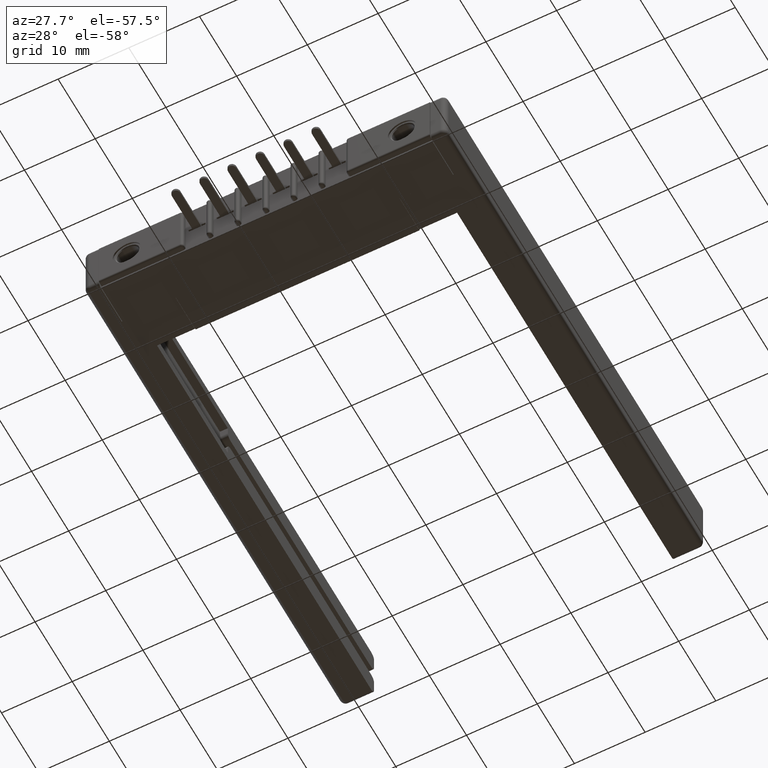
[diagram: clean part render]
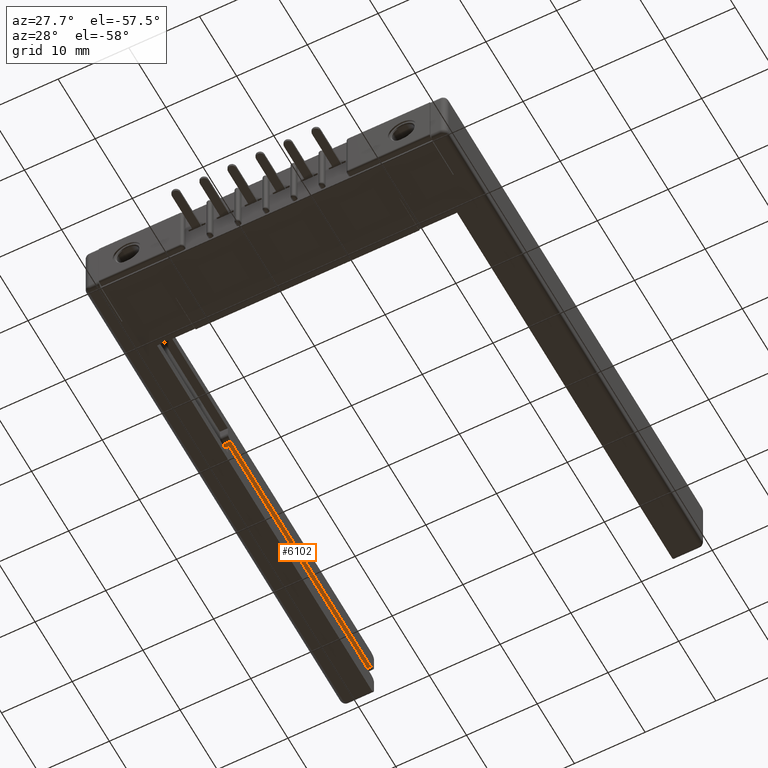
[diagram: same view with one face highlighted and labeled with its STEP entity id]
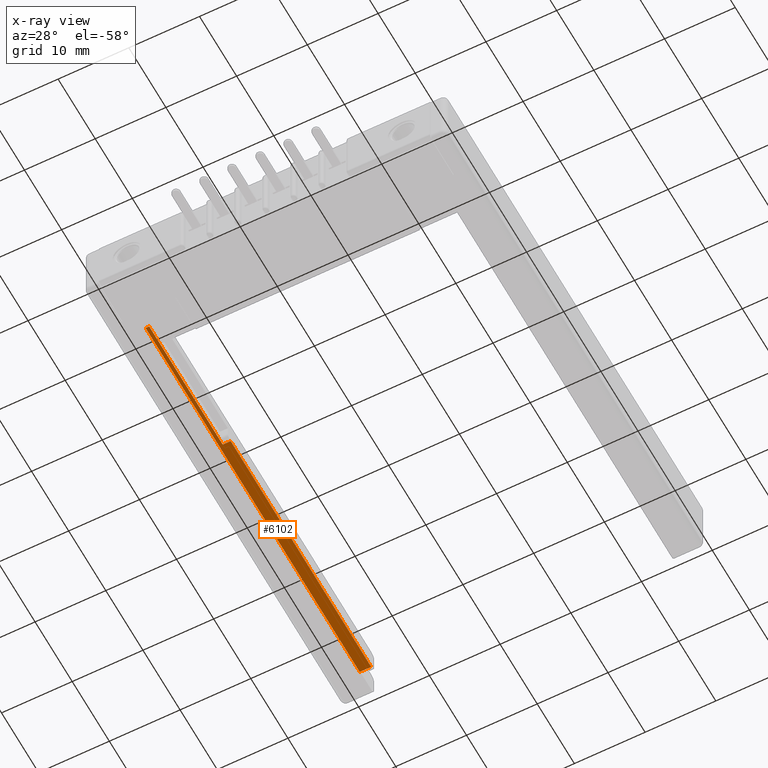
[diagram: x-ray of the same camera — body ghosted, the highlighted face saturated]
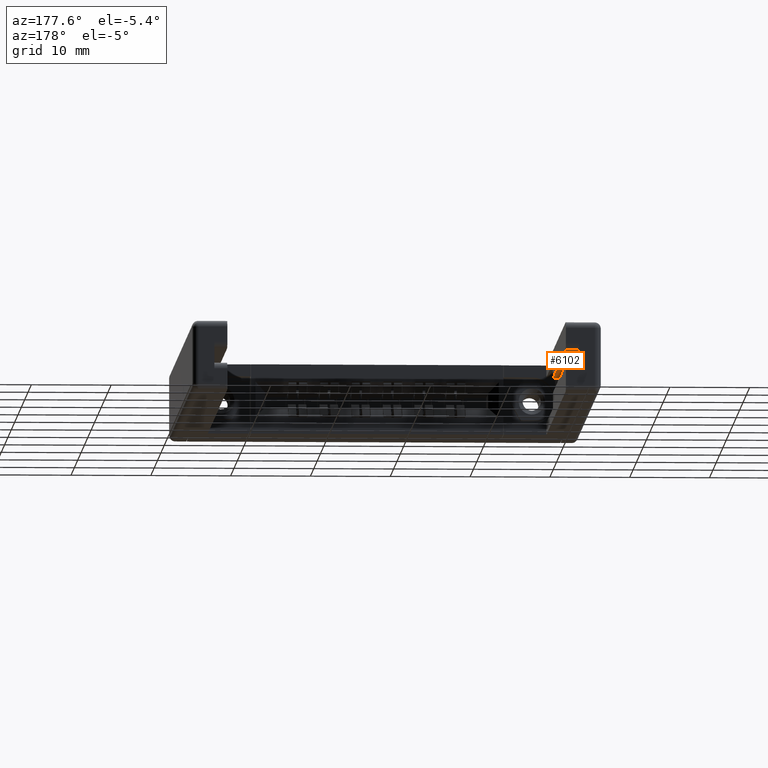
[diagram: same view with one face highlighted and labeled with its STEP entity id]
A machine part, auxiliary view. The second image highlights one B-rep face of the part: STEP entity #6102.
The next image is the same camera in x-ray: the body ghosted, the highlighted face saturated — about 0% of this face is hidden behind the body in this view.
A second angle (auxiliary view) of the same face is appended — the face is thin or edge-on in the first view.
In plain terms, the highlighted planar face has unit normal (-0, 0, 1).
Its self-contained STEP definition (entity closure, byte-faithful):
#102 = ORIENTED_EDGE ( 'NONE', *, *, #4669, .T. ) ;
#360 = ORIENTED_EDGE ( 'NONE', *, *, #4867, .T. ) ;
#378 = ORIENTED_EDGE ( 'NONE', *, *, #4871, .T. ) ;
#672 = ORIENTED_EDGE ( 'NONE', *, *, #4261, .F. ) ;
#753 = ORIENTED_EDGE ( 'NONE', *, *, #4873, .F. ) ;
#863 = ORIENTED_EDGE ( 'NONE', *, *, #4888, .T. ) ;
#975 = LINE ( 'NONE', #6264, #11597 ) ;
#1341 = VECTOR ( 'NONE', #3588, 39.37007874015748100 ) ;
#1550 = VERTEX_POINT ( 'NONE', #3589 ) ;
#1999 = CARTESIAN_POINT ( 'NONE',  ( 0.1729999999999998800, 1.229999999999999800, -0.1360000000000001200 ) ) ;
#3297 = CARTESIAN_POINT ( 'NONE',  ( 0.1289999999999998600, 1.230000000000000000, -0.1360000000000001200 ) ) ;
#3588 = DIRECTION ( 'NONE',  ( 1.365923996832131600E-016, -1.000000000000000000, 3.711749991391662600E-017 ) ) ;
#3589 = CARTESIAN_POINT ( 'NONE',  ( 0.1289999999999999200, 0.4500000000000001200, -0.1360000000000000900 ) ) ;
#3755 = DIRECTION ( 'NONE',  ( 1.187759997245332100E-016, -1.000000000000000000, 3.711749991391662600E-017 ) ) ;
#4173 = DIRECTION ( 'NONE',  ( 1.000000000000000000, 1.294842656484354100E-016, -0.0000000000000000000 ) ) ;
#4261 = EDGE_CURVE ( 'NONE', #4343, #1550, #7360, .T. ) ;
#4334 = AXIS2_PLACEMENT_3D ( 'NONE', #5879, #4899, #5349 ) ;
#4343 = VERTEX_POINT ( 'NONE', #10071 ) ;
#4392 = VERTEX_POINT ( 'NONE', #1999 ) ;
#4442 = LINE ( 'NONE', #10204, #4772 ) ;
#4462 = CARTESIAN_POINT ( 'NONE',  ( 0.1089999999999998600, 1.230000000000000000, -0.1360000000000001200 ) ) ;
#4669 = EDGE_CURVE ( 'NONE', #9593, #4392, #12929, .T. ) ;
#4772 = VECTOR ( 'NONE', #3755, 39.37007874015748100 ) ;
#4800 = VECTOR ( 'NONE', #4173, 39.37007874015748100 ) ;
#4867 = EDGE_CURVE ( 'NONE', #4392, #8307, #9537, .T. ) ;
#4871 = EDGE_CURVE ( 'NONE', #8307, #1550, #7626, .T. ) ;
#4873 = EDGE_CURVE ( 'NONE', #10522, #4343, #4442, .T. ) ;
#4888 = EDGE_CURVE ( 'NONE', #10522, #9593, #975, .T. ) ;
#4899 = DIRECTION ( 'NONE',  ( -4.806132219059359000E-033, 3.711749991391662600E-017, 1.000000000000000000 ) ) ;
#5349 = DIRECTION ( 'NONE',  ( 0.0000000000000000000, -1.000000000000000000, 3.711749991391662600E-017 ) ) ;
#5540 = PLANE ( 'NONE',  #4334 ) ;
#5879 = CARTESIAN_POINT ( 'NONE',  ( 0.1089999999999999700, 0.4500000000000001200, -0.1360000000000000900 ) ) ;
#6102 = ADVANCED_FACE ( 'NONE', ( #7630 ), #5540, .F. ) ;
#6264 = CARTESIAN_POINT ( 'NONE',  ( 0.1729999999999997100, 2.719999999999999800, -0.1360000000000001800 ) ) ;
#7024 = VECTOR ( 'NONE', #9375, 39.37007874015748100 ) ;
#7360 = LINE ( 'NONE', #9803, #4800 ) ;
#7626 = LINE ( 'NONE', #9208, #1341 ) ;
#7630 = FACE_OUTER_BOUND ( 'NONE', #9498, .T. ) ;
#8088 = VECTOR ( 'NONE', #12988, 39.37007874015748100 ) ;
#8307 = VERTEX_POINT ( 'NONE', #3297 ) ;
#9101 = CARTESIAN_POINT ( 'NONE',  ( 0.1089999999999996900, 2.719999999999999300, -0.1360000000000001800 ) ) ;
#9208 = CARTESIAN_POINT ( 'NONE',  ( 0.1289999999999999800, 0.4500000000000001200, -0.1360000000000000900 ) ) ;
#9375 = DIRECTION ( 'NONE',  ( -1.000000000000000000, -1.294842656484354100E-016, 0.0000000000000000000 ) ) ;
#9498 = EDGE_LOOP ( 'NONE', ( #102, #360, #378, #672, #753, #863 ) ) ;
#9537 = LINE ( 'NONE', #4462, #7024 ) ;
#9593 = VERTEX_POINT ( 'NONE', #11271 ) ;
#9803 = CARTESIAN_POINT ( 'NONE',  ( 0.1089999999999999700, 0.4500000000000001200, -0.1360000000000000900 ) ) ;
#10071 = CARTESIAN_POINT ( 'NONE',  ( 0.1089999999999999700, 0.4500000000000001200, -0.1360000000000000900 ) ) ;
#10204 = CARTESIAN_POINT ( 'NONE',  ( 0.1089999999999999700, 0.4500000000000001200, -0.1360000000000000900 ) ) ;
#10522 = VERTEX_POINT ( 'NONE', #9101 ) ;
#11271 = CARTESIAN_POINT ( 'NONE',  ( 0.1729999999999997100, 2.719999999999999300, -0.1360000000000001800 ) ) ;
#11590 = CARTESIAN_POINT ( 'NONE',  ( 0.1729999999999999600, 0.4500000000000001200, -0.1360000000000000900 ) ) ;
#11597 = VECTOR ( 'NONE', #12262, 39.37007874015748100 ) ;
#12262 = DIRECTION ( 'NONE',  ( 1.000000000000000000, 0.0000000000000000000, 4.806132219059359000E-033 ) ) ;
#12929 = LINE ( 'NONE', #11590, #8088 ) ;
#12988 = DIRECTION ( 'NONE',  ( 1.187759997245332100E-016, -1.000000000000000000, 3.711749991391662600E-017 ) ) ;